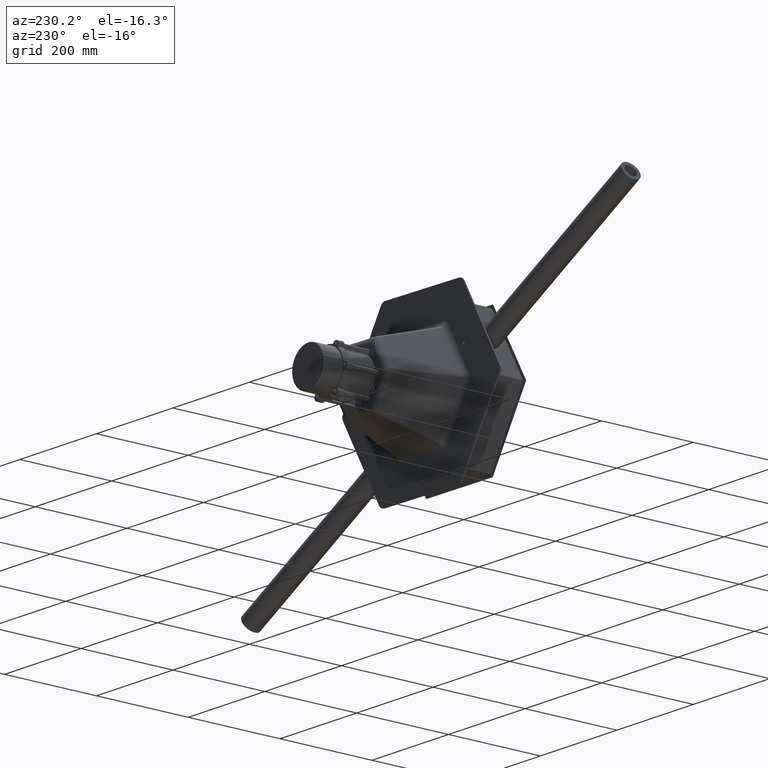
[diagram: clean part render]
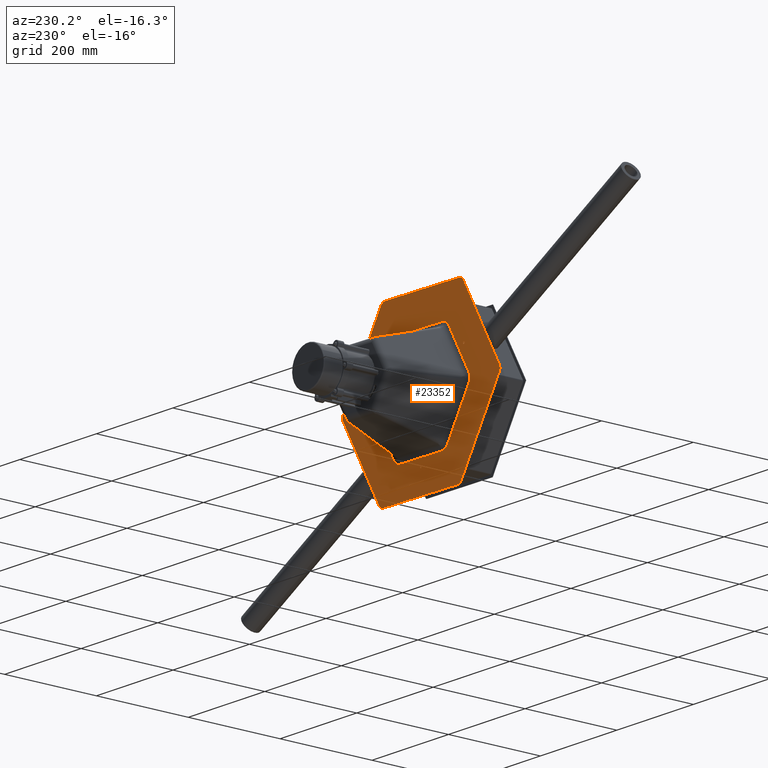
[diagram: same view with one face highlighted and labeled with its STEP entity id]
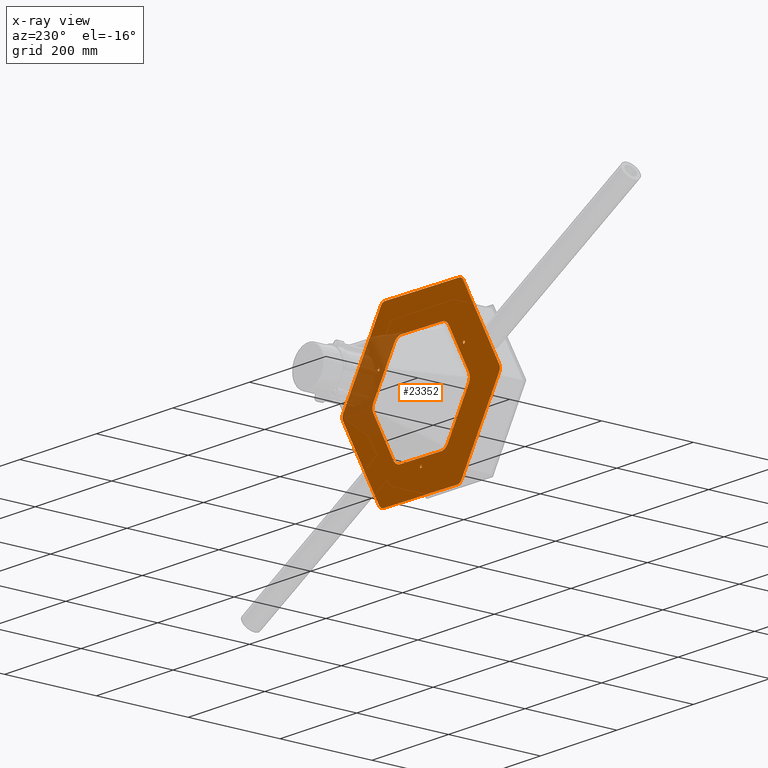
[diagram: x-ray of the same camera — body ghosted, the highlighted face saturated]
A machine part, auxiliary view. The second image highlights one B-rep face of the part: STEP entity #23352.
The next image is the same camera in x-ray: the body ghosted, the highlighted face saturated — about 18% of this face is hidden behind the body in this view.
In plain terms, the highlighted planar face has unit normal (-0, 1, -0).
Its self-contained STEP definition (entity closure, byte-faithful):
#237 = VERTEX_POINT ( 'NONE', #19984 ) ;
#259 = ORIENTED_EDGE ( 'NONE', *, *, #18455, .T. ) ;
#294 = CARTESIAN_POINT ( 'NONE',  ( -102.2335756172568040, -71.23590584283076055, 3.000000000000000000 ) ) ;
#449 = CARTESIAN_POINT ( 'NONE',  ( 63.69974159824984383, 111.8859771665176766, 3.000000000000000000 ) ) ;
#627 = VERTEX_POINT ( 'NONE', #6059 ) ;
#777 =( BOUNDED_CURVE ( )  B_SPLINE_CURVE ( 3, ( #13320, #21138, #10835, #28954 ),
 .UNSPECIFIED., .F., .F. ) 
 B_SPLINE_CURVE_WITH_KNOTS ( ( 4, 4 ),
 ( 5.781736827145350865, 6.283185307179586232 ),
 .UNSPECIFIED. ) 
 CURVE ( )  GEOMETRIC_REPRESENTATION_ITEM ( )  RATIONAL_B_SPLINE_CURVE ( ( 1.000000000000000000, 0.9791553251799449686, 0.9791553251799449686, 1.000000000000000000 ) ) 
 REPRESENTATION_ITEM ( '' )  );
#853 = LINE ( 'NONE', #21606, #8546 ) ;
#980 = ORIENTED_EDGE ( 'NONE', *, *, #12098, .T. ) ;
#995 = EDGE_CURVE ( 'NONE', #2532, #237, #9636, .T. ) ;
#998 = VERTEX_POINT ( 'NONE', #17153 ) ;
#1296 = FACE_BOUND ( 'NONE', #28038, .T. ) ;
#1442 = DIRECTION ( 'NONE',  ( 1.000000000000000000, 0.0000000000000000000, 0.0000000000000000000 ) ) ;
#1617 = CARTESIAN_POINT ( 'NONE',  ( -10.57531631285924156, 124.1548265256771657, 3.000000000000000000 ) ) ;
#1655 = PLANE ( 'NONE',  #32289 ) ;
#1810 = CARTESIAN_POINT ( 'NONE',  ( -131.0606159927932026, -0.9905632959438803731, 3.000000000000000000 ) ) ;
#1875 = CARTESIAN_POINT ( 'NONE',  ( 180.0000000000000568, -103.9230484541325978, 3.000000000000000000 ) ) ;
#1896 = VECTOR ( 'NONE', #4696, 1000.000000000000227 ) ;
#1960 = CARTESIAN_POINT ( 'NONE',  ( 61.19974159824982252, 111.8859771665176766, 3.000000000000000000 ) ) ;
#2061 = EDGE_CURVE ( 'NONE', #30990, #24450, #7543, .T. ) ;
#2078 = CARTESIAN_POINT ( 'NONE',  ( -105.4923940547534187, -69.35442614070200307, 2.999999999999999112 ) ) ;
#2101 = FACE_BOUND ( 'NONE', #17333, .T. ) ;
#2138 = CARTESIAN_POINT ( 'NONE',  ( -3.716348494597271124, -127.0074095792361959, 2.999999999999999112 ) ) ;
#2185 = CARTESIAN_POINT ( 'NONE',  ( -180.0000000000000284, -103.9230484541326831, 3.000000000000000000 ) ) ;
#2196 = CARTESIAN_POINT ( 'NONE',  ( 10.57531631285926110, 124.1548265256772083, 3.000000000000000000 ) ) ;
#2288 = CARTESIAN_POINT ( 'NONE',  ( -112.8088919301161042, -52.91892068284656858, 3.000000000000000000 ) ) ;
#2380 = ORIENTED_EDGE ( 'NONE', *, *, #2940, .T. ) ;
#2389 = VERTEX_POINT ( 'NONE', #294 ) ;
#2503 = CARTESIAN_POINT ( 'NONE',  ( 102.2335756172567187, 71.23590584283083160, 3.000000000000000000 ) ) ;
#2532 = VERTEX_POINT ( 'NONE', #29494 ) ;
#2597 = LINE ( 'NONE', #3224, #28545 ) ;
#2700 = DIRECTION ( 'NONE',  ( 0.0000000000000000000, 0.0000000000000000000, 1.000000000000000000 ) ) ;
#2880 = CARTESIAN_POINT ( 'NONE',  ( 108.1334689171748806, -66.72215699525541766, 2.999999999999999112 ) ) ;
#2883 = CARTESIAN_POINT ( 'NONE',  ( -10.57531631285924156, 124.1548265256771657, 3.000000000000000000 ) ) ;
#2940 = EDGE_CURVE ( 'NONE', #16932, #627, #10976, .T. ) ;
#2965 = VERTEX_POINT ( 'NONE', #5092 ) ;
#3002 = CARTESIAN_POINT ( 'NONE',  ( -128.5606159927932879, -0.9905632959438803731, 3.000000000000000000 ) ) ;
#3047 = DIRECTION ( 'NONE',  ( 1.000000000000000000, 0.0000000000000000000, 0.0000000000000000000 ) ) ;
#3224 = CARTESIAN_POINT ( 'NONE',  ( -9.330518732437003138, 124.8735107438205461, 3.000000000000000000 ) ) ;
#3232 = CARTESIAN_POINT ( 'NONE',  ( 112.8088919301160900, -54.35628911913327954, 3.000000000000000000 ) ) ;
#3284 = CARTESIAN_POINT ( 'NONE',  ( 10.57531631285921137, -124.1548265256771941, 3.000000000000000000 ) ) ;
#3389 = VERTEX_POINT ( 'NONE', #3284 ) ;
#3453 = VERTEX_POINT ( 'NONE', #24309 ) ;
#3769 = CARTESIAN_POINT ( 'NONE',  ( 10.57531631285926110, 124.1548265256772083, 3.000000000000000000 ) ) ;
#3842 = CIRCLE ( 'NONE', #17942, 2.500000000000015987 ) ;
#4224 = ORIENTED_EDGE ( 'NONE', *, *, #19201, .T. ) ;
#4489 = DIRECTION ( 'NONE',  ( 0.0000000000000000000, 1.000000000000000000, 0.0000000000000000000 ) ) ;
#4506 = DIRECTION ( 'NONE',  ( 0.0000000000000000000, 0.0000000000000000000, 1.000000000000000000 ) ) ;
#4571 = EDGE_CURVE ( 'NONE', #28421, #33275, #16714, .T. ) ;
#4687 = VERTEX_POINT ( 'NONE', #6708 ) ;
#4693 = CARTESIAN_POINT ( 'NONE',  ( -108.1334689171749091, -66.72215699525544608, 2.999999999999999112 ) ) ;
#4696 = DIRECTION ( 'NONE',  ( -0.8660254037844385966, 0.5000000000000000000, 0.0000000000000000000 ) ) ;
#4712 = ORIENTED_EDGE ( 'NONE', *, *, #26738, .T. ) ;
#4776 = VERTEX_POINT ( 'NONE', #7140 ) ;
#4860 = AXIS2_PLACEMENT_3D ( 'NONE', #32467, #16931, #1442 ) ;
#4976 = CARTESIAN_POINT ( 'NONE',  ( 112.8088919301159763, 56.68188008710421855, 2.999999999999999112 ) ) ;
#5013 = CARTESIAN_POINT ( 'NONE',  ( -103.4783731976790477, -70.51722162468739441, 3.000000000000000000 ) ) ;
#5092 = CARTESIAN_POINT ( 'NONE',  ( 174.0000000000000568, -107.3871500692703336, 3.000000000000000000 ) ) ;
#5334 = DIRECTION ( 'NONE',  ( 0.0000000000000000000, 0.0000000000000000000, 1.000000000000000000 ) ) ;
#5401 =( BOUNDED_CURVE ( )  B_SPLINE_CURVE ( 3, ( #1617, #17118, #22337, #6862 ),
 .UNSPECIFIED., .F., .F. ) 
 B_SPLINE_CURVE_WITH_KNOTS ( ( 4, 4 ),
 ( 5.781736827145351754, 6.283185307179586232 ),
 .UNSPECIFIED. ) 
 CURVE ( )  GEOMETRIC_REPRESENTATION_ITEM ( )  RATIONAL_B_SPLINE_CURVE ( ( 1.000000000000000000, 0.9791553251799449686, 0.9791553251799449686, 1.000000000000000000 ) ) 
 REPRESENTATION_ITEM ( '' )  );
#5422 = ORIENTED_EDGE ( 'NONE', *, *, #24678, .F. ) ;
#5490 = CARTESIAN_POINT ( 'NONE',  ( 109.9916431644734871, -63.50370478961816900, 2.999999999999997335 ) ) ;
#5569 = CARTESIAN_POINT ( 'NONE',  ( -1.821459649775647449E-14, -193.9896904477142812, 3.000000000000000000 ) ) ;
#5620 = DIRECTION ( 'NONE',  ( 1.000000000000000000, 0.0000000000000000000, 0.0000000000000000000 ) ) ;
#5632 = CARTESIAN_POINT ( 'NONE',  ( 1.040834085586084257E-14, 207.8460969082652809, 3.000000000000000000 ) ) ;
#5665 = ORIENTED_EDGE ( 'NONE', *, *, #24811, .T. ) ;
#5676 = LINE ( 'NONE', #22357, #18605 ) ;
#5888 = CARTESIAN_POINT ( 'NONE',  ( -109.9916431644735866, 63.50370478961811216, 2.999999999999998224 ) ) ;
#6059 = CARTESIAN_POINT ( 'NONE',  ( 112.8088919301159905, 52.91892068284668227, 3.000000000000000000 ) ) ;
#6113 = DIRECTION ( 'NONE',  ( 0.8660254037844388186, -0.4999999999999996669, 0.0000000000000000000 ) ) ;
#6293 = ORIENTED_EDGE ( 'NONE', *, *, #12760, .F. ) ;
#6523 = CIRCLE ( 'NONE', #24479, 2.499999999999932943 ) ;
#6654 = CARTESIAN_POINT ( 'NONE',  ( -6.000000000000008882, 204.3819952931275168, 3.000000000000000000 ) ) ;
#6708 = CARTESIAN_POINT ( 'NONE',  ( -180.0000000000000284, -96.99484522385709795, 3.000000000000000000 ) ) ;
#6736 = CARTESIAN_POINT ( 'NONE',  ( 66.19974159824985804, 111.8859771665176766, 3.000000000000000000 ) ) ;
#6862 = CARTESIAN_POINT ( 'NONE',  ( 2.385150481294069307E-14, 127.0074095792361675, 2.999999999999999112 ) ) ;
#6887 = VERTEX_POINT ( 'NONE', #15729 ) ;
#7025 = CARTESIAN_POINT ( 'NONE',  ( 9.330518732436996032, -124.8735107438205603, 3.000000000000000000 ) ) ;
#7140 = CARTESIAN_POINT ( 'NONE',  ( -10.57531631285926998, -124.1548265256772083, 3.000000000000000000 ) ) ;
#7298 = EDGE_CURVE ( 'NONE', #2965, #21301, #23447, .T. ) ;
#7346 = CARTESIAN_POINT ( 'NONE',  ( -1.865110631197190548E-14, -127.0074095792361959, 2.999999999999999112 ) ) ;
#7378 = CARTESIAN_POINT ( 'NONE',  ( 109.9916431644734871, -63.50370478961816900, 2.999999999999997335 ) ) ;
#7426 = CARTESIAN_POINT ( 'NONE',  ( 102.2335756172568324, -71.23590584283073213, 3.000000000000000000 ) ) ;
#7438 = ORIENTED_EDGE ( 'NONE', *, *, #9599, .T. ) ;
#7541 = ORIENTED_EDGE ( 'NONE', *, *, #30410, .T. ) ;
#7543 = CIRCLE ( 'NONE', #4860, 2.499999999999919176 ) ;
#7580 = VERTEX_POINT ( 'NONE', #22043 ) ;
#7968 = CARTESIAN_POINT ( 'NONE',  ( 105.4923940547533761, -69.35442614070198886, 2.999999999999999112 ) ) ;
#8080 = CIRCLE ( 'NONE', #28428, 2.500000000000015987 ) ;
#8157 = DIRECTION ( 'NONE',  ( 1.000000000000000000, 0.0000000000000000000, 0.0000000000000000000 ) ) ;
#8379 = CARTESIAN_POINT ( 'NONE',  ( -174.0000000000000853, 107.3871500692703194, 3.000000000000000000 ) ) ;
#8519 = ORIENTED_EDGE ( 'NONE', *, *, #12091, .T. ) ;
#8546 = VECTOR ( 'NONE', #6113, 1000.000000000000114 ) ;
#8710 = DIRECTION ( 'NONE',  ( 0.0000000000000000000, 0.0000000000000000000, 1.000000000000000000 ) ) ;
#8760 = VECTOR ( 'NONE', #20295, 1000.000000000000114 ) ;
#8810 = VECTOR ( 'NONE', #27600, 1000.000000000000000 ) ;
#8838 = CARTESIAN_POINT ( 'NONE',  ( 105.4923940547532908, 69.35442614070210254, 2.999999999999999112 ) ) ;
#8850 = CARTESIAN_POINT ( 'NONE',  ( 2.385150481294069307E-14, 127.0074095792361675, 2.999999999999999112 ) ) ;
#8883 = VERTEX_POINT ( 'NONE', #25751 ) ;
#9268 = CIRCLE ( 'NONE', #24276, 12.00000000000001066 ) ;
#9366 = CARTESIAN_POINT ( 'NONE',  ( -126.0606159927933589, -0.9905632959438801510, 3.000000000000000000 ) ) ;
#9451 = DIRECTION ( 'NONE',  ( 0.0000000000000000000, 0.0000000000000000000, 1.000000000000000000 ) ) ;
#9454 = CARTESIAN_POINT ( 'NONE',  ( -112.8088919301161468, 54.35628911913325112, 3.000000000000000000 ) ) ;
#9477 = CARTESIAN_POINT ( 'NONE',  ( 64.49258023428306785, -110.8974878807649702, 3.000000000000000000 ) ) ;
#9583 = CARTESIAN_POINT ( 'NONE',  ( 3.716348494597223606, -127.0074095792361959, 2.999999999999999556 ) ) ;
#9599 = EDGE_CURVE ( 'NONE', #11940, #4687, #27754, .T. ) ;
#9636 = LINE ( 'NONE', #9454, #8810 ) ;
#9865 = CARTESIAN_POINT ( 'NONE',  ( -109.9916431644735439, -63.50370478961814058, 2.999999999999999112 ) ) ;
#9921 = EDGE_CURVE ( 'NONE', #24450, #30990, #17175, .T. ) ;
#9992 = EDGE_CURVE ( 'NONE', #14315, #30175, #2597, .T. ) ;
#10063 = DIRECTION ( 'NONE',  ( 0.0000000000000000000, 0.0000000000000000000, 1.000000000000000000 ) ) ;
#10328 =( BOUNDED_CURVE ( )  B_SPLINE_CURVE ( 3, ( #26975, #8838, #11460, #29588 ),
 .UNSPECIFIED., .F., .F. ) 
 B_SPLINE_CURVE_WITH_KNOTS ( ( 4, 4 ),
 ( 5.781736827145355306, 6.283185307179586232 ),
 .UNSPECIFIED. ) 
 CURVE ( )  GEOMETRIC_REPRESENTATION_ITEM ( )  RATIONAL_B_SPLINE_CURVE ( ( 1.000000000000000000, 0.9791553251799453017, 0.9791553251799453017, 1.000000000000000000 ) ) 
 REPRESENTATION_ITEM ( '' )  );
#10472 = ORIENTED_EDGE ( 'NONE', *, *, #27643, .T. ) ;
#10664 = CARTESIAN_POINT ( 'NONE',  ( -174.0000000000000284, -107.3871500692704331, 3.000000000000000000 ) ) ;
#10726 = AXIS2_PLACEMENT_3D ( 'NONE', #3002, #21111, #5620 ) ;
#10835 = CARTESIAN_POINT ( 'NONE',  ( 111.8498174117721362, -60.28525258398089193, 2.999999999999999112 ) ) ;
#10976 =( BOUNDED_CURVE ( )  B_SPLINE_CURVE ( 3, ( #17857, #33383, #4976, #23070 ),
 .UNSPECIFIED., .F., .F. ) 
 B_SPLINE_CURVE_WITH_KNOTS ( ( 4, 4 ),
 ( 2.365532012695644245E-16, 0.5014484800342345894 ),
 .UNSPECIFIED. ) 
 CURVE ( )  GEOMETRIC_REPRESENTATION_ITEM ( )  RATIONAL_B_SPLINE_CURVE ( ( 1.000000000000000000, 0.9791553251799449686, 0.9791553251799449686, 1.000000000000000000 ) ) 
 REPRESENTATION_ITEM ( '' )  );
#11006 = VERTEX_POINT ( 'NONE', #13893 ) ;
#11021 = DIRECTION ( 'NONE',  ( 0.0000000000000000000, 0.0000000000000000000, 1.000000000000000000 ) ) ;
#11041 = DIRECTION ( 'NONE',  ( 9.472722593022467068E-16, -1.000000000000000000, 0.0000000000000000000 ) ) ;
#11081 = VECTOR ( 'NONE', #4489, 1000.000000000000000 ) ;
#11084 = CARTESIAN_POINT ( 'NONE',  ( -102.2335756172569035, 71.23590584283070370, 3.000000000000000000 ) ) ;
#11111 = LINE ( 'NONE', #7025, #31768 ) ;
#11175 = LINE ( 'NONE', #5632, #24949 ) ;
#11197 = ORIENTED_EDGE ( 'NONE', *, *, #13128, .T. ) ;
#11388 = DIRECTION ( 'NONE',  ( 0.0000000000000000000, -1.000000000000000000, 0.0000000000000000000 ) ) ;
#11460 = CARTESIAN_POINT ( 'NONE',  ( 108.1334689171747954, 66.72215699525553134, 2.999999999999999112 ) ) ;
#11687 = ORIENTED_EDGE ( 'NONE', *, *, #13977, .T. ) ;
#11729 = EDGE_LOOP ( 'NONE', ( #8519, #26803, #4712, #13545, #7438, #5665, #980, #13869, #20048, #12680, #30706, #11687 ) ) ;
#11794 =( BOUNDED_CURVE ( )  B_SPLINE_CURVE ( 3, ( #9865, #33207, #17780, #2288 ),
 .UNSPECIFIED., .F., .F. ) 
 B_SPLINE_CURVE_WITH_KNOTS ( ( 4, 4 ),
 ( 2.365532012695645231E-16, 0.5014484800342338122 ),
 .UNSPECIFIED. ) 
 CURVE ( )  GEOMETRIC_REPRESENTATION_ITEM ( )  RATIONAL_B_SPLINE_CURVE ( ( 1.000000000000000000, 0.9791553251799449686, 0.9791553251799449686, 1.000000000000000000 ) ) 
 REPRESENTATION_ITEM ( '' )  );
#11874 = CIRCLE ( 'NONE', #15456, 12.00000000000001066 ) ;
#11940 = VERTEX_POINT ( 'NONE', #28245 ) ;
#12069 = CARTESIAN_POINT ( 'NONE',  ( -102.2335756172569035, 71.23590584283070370, 3.000000000000000000 ) ) ;
#12091 = EDGE_CURVE ( 'NONE', #11006, #28421, #22558, .T. ) ;
#12098 = EDGE_CURVE ( 'NONE', #25660, #19557, #14845, .T. ) ;
#12108 = DIRECTION ( 'NONE',  ( 1.000000000000000000, 0.0000000000000000000, 0.0000000000000000000 ) ) ;
#12620 = ORIENTED_EDGE ( 'NONE', *, *, #28333, .T. ) ;
#12680 = ORIENTED_EDGE ( 'NONE', *, *, #7298, .T. ) ;
#12760 = EDGE_CURVE ( 'NONE', #32035, #29463, #3842, .T. ) ;
#12780 = ORIENTED_EDGE ( 'NONE', *, *, #20464, .F. ) ;
#13110 = CARTESIAN_POINT ( 'NONE',  ( 63.69974159824984383, 111.8859771665176766, 3.000000000000000000 ) ) ;
#13128 = EDGE_CURVE ( 'NONE', #3389, #21886, #13233, .T. ) ;
#13133 = EDGE_LOOP ( 'NONE', ( #32595, #30801 ) ) ;
#13233 =( BOUNDED_CURVE ( )  B_SPLINE_CURVE ( 3, ( #22496, #25106, #9583, #27706 ),
 .UNSPECIFIED., .F., .F. ) 
 B_SPLINE_CURVE_WITH_KNOTS ( ( 4, 4 ),
 ( 5.781736827145353530, 6.283185307179586232 ),
 .UNSPECIFIED. ) 
 CURVE ( )  GEOMETRIC_REPRESENTATION_ITEM ( )  RATIONAL_B_SPLINE_CURVE ( ( 1.000000000000000000, 0.9791553251799451907, 0.9791553251799451907, 1.000000000000000000 ) ) 
 REPRESENTATION_ITEM ( '' )  );
#13320 = CARTESIAN_POINT ( 'NONE',  ( 112.8088919301160900, -52.91892068284654016, 3.000000000000000000 ) ) ;
#13321 = VERTEX_POINT ( 'NONE', #2503 ) ;
#13368 = AXIS2_PLACEMENT_3D ( 'NONE', #16227, #8710, #26850 ) ;
#13545 = ORIENTED_EDGE ( 'NONE', *, *, #15257, .T. ) ;
#13620 = CARTESIAN_POINT ( 'NONE',  ( -109.9916431644735866, 63.50370478961811216, 2.999999999999998224 ) ) ;
#13869 = ORIENTED_EDGE ( 'NONE', *, *, #32532, .T. ) ;
#13893 = CARTESIAN_POINT ( 'NONE',  ( 174.0000000000000568, 107.3871500692703620, 3.000000000000000000 ) ) ;
#13977 = EDGE_CURVE ( 'NONE', #998, #11006, #11874, .T. ) ;
#14208 = ORIENTED_EDGE ( 'NONE', *, *, #14581, .T. ) ;
#14315 = VERTEX_POINT ( 'NONE', #12069 ) ;
#14421 = VERTEX_POINT ( 'NONE', #2196 ) ;
#14581 = EDGE_CURVE ( 'NONE', #14664, #15720, #32348, .T. ) ;
#14664 = VERTEX_POINT ( 'NONE', #7378 ) ;
#14845 = LINE ( 'NONE', #2185, #8760 ) ;
#14952 = EDGE_CURVE ( 'NONE', #14421, #13321, #853, .T. ) ;
#14955 = VERTEX_POINT ( 'NONE', #8379 ) ;
#15031 = CARTESIAN_POINT ( 'NONE',  ( 6.000000000000032863, 204.3819952931275168, 3.000000000000000000 ) ) ;
#15051 = FACE_BOUND ( 'NONE', #13133, .T. ) ;
#15140 = CARTESIAN_POINT ( 'NONE',  ( -10.57531631285926998, -124.1548265256772083, 3.000000000000000000 ) ) ;
#15257 = EDGE_CURVE ( 'NONE', #14955, #11940, #30015, .T. ) ;
#15408 = DIRECTION ( 'NONE',  ( -0.8660254037844387076, 0.4999999999999998335, 0.0000000000000000000 ) ) ;
#15456 = AXIS2_PLACEMENT_3D ( 'NONE', #18190, #2700, #20802 ) ;
#15475 = CARTESIAN_POINT ( 'NONE',  ( 109.9916431644734018, 63.50370478961828269, 2.999999999999999112 ) ) ;
#15715 = DIRECTION ( 'NONE',  ( 1.000000000000000000, 0.0000000000000000000, 0.0000000000000000000 ) ) ;
#15720 = VERTEX_POINT ( 'NONE', #7426 ) ;
#15729 = CARTESIAN_POINT ( 'NONE',  ( 61.99258023428314601, -110.8974878807649702, 3.000000000000000000 ) ) ;
#15961 = EDGE_CURVE ( 'NONE', #237, #20157, #29869, .T. ) ;
#16095 = CARTESIAN_POINT ( 'NONE',  ( -112.8088919301161468, 56.68188008710405512, 2.999999999999999112 ) ) ;
#16227 = CARTESIAN_POINT ( 'NONE',  ( 7.806255641895631925E-15, 193.9896904477142527, 3.000000000000000000 ) ) ;
#16347 = EDGE_CURVE ( 'NONE', #18682, #2532, #11794, .T. ) ;
#16616 = AXIS2_PLACEMENT_3D ( 'NONE', #5569, #23647, #8157 ) ;
#16714 = CIRCLE ( 'NONE', #13368, 12.00000000000000000 ) ;
#16851 = EDGE_CURVE ( 'NONE', #21886, #4776, #27366, .T. ) ;
#16931 = DIRECTION ( 'NONE',  ( 0.0000000000000000000, 0.0000000000000000000, 1.000000000000000000 ) ) ;
#16932 = VERTEX_POINT ( 'NONE', #15475 ) ;
#16945 = ORIENTED_EDGE ( 'NONE', *, *, #25107, .T. ) ;
#16948 = CIRCLE ( 'NONE', #16616, 12.00000000000000000 ) ;
#17006 = CARTESIAN_POINT ( 'NONE',  ( 112.8088919301160900, -52.91892068284654016, 3.000000000000000000 ) ) ;
#17118 = CARTESIAN_POINT ( 'NONE',  ( -7.316497875362673042, 126.0363062278059516, 2.999999999999999112 ) ) ;
#17153 = CARTESIAN_POINT ( 'NONE',  ( 180.0000000000000568, 96.99484522385711216, 3.000000000000000000 ) ) ;
#17175 = CIRCLE ( 'NONE', #10726, 2.499999999999919176 ) ;
#17333 = EDGE_LOOP ( 'NONE', ( #32255, #4224, #2380, #16945, #259, #14208, #12620, #11197, #20035, #26894, #31199, #20450, #26477, #19670, #32141, #29516, #10472, #7541 ) ) ;
#17567 = CARTESIAN_POINT ( 'NONE',  ( -102.2335756172568040, -71.23590584283076055, 3.000000000000000000 ) ) ;
#17673 = ORIENTED_EDGE ( 'NONE', *, *, #18140, .F. ) ;
#17780 = CARTESIAN_POINT ( 'NONE',  ( -112.8088919301161042, -56.68188008710410486, 2.999999999999999112 ) ) ;
#17857 = CARTESIAN_POINT ( 'NONE',  ( 109.9916431644734018, 63.50370478961828269, 2.999999999999999112 ) ) ;
#17942 = AXIS2_PLACEMENT_3D ( 'NONE', #449, #18534, #3047 ) ;
#18011 = LINE ( 'NONE', #5013, #24083 ) ;
#18140 = EDGE_CURVE ( 'NONE', #6887, #7580, #6523, .T. ) ;
#18190 = CARTESIAN_POINT ( 'NONE',  ( 168.0000000000000284, 96.99484522385711216, 3.000000000000000000 ) ) ;
#18455 = EDGE_CURVE ( 'NONE', #27639, #14664, #777, .T. ) ;
#18534 = DIRECTION ( 'NONE',  ( 0.0000000000000000000, 0.0000000000000000000, 1.000000000000000000 ) ) ;
#18605 = VECTOR ( 'NONE', #27484, 1000.000000000000000 ) ;
#18682 = VERTEX_POINT ( 'NONE', #24621 ) ;
#18727 = EDGE_CURVE ( 'NONE', #8883, #2965, #5676, .T. ) ;
#19201 = EDGE_CURVE ( 'NONE', #13321, #16932, #10328, .T. ) ;
#19257 = CARTESIAN_POINT ( 'NONE',  ( 7.316497875362693470, 126.0363062278059516, 2.999999999999999556 ) ) ;
#19557 = VERTEX_POINT ( 'NONE', #28547 ) ;
#19670 = ORIENTED_EDGE ( 'NONE', *, *, #15961, .T. ) ;
#19701 = EDGE_CURVE ( 'NONE', #20157, #14315, #31923, .T. ) ;
#19771 = CARTESIAN_POINT ( 'NONE',  ( 0.0000000000000000000, 0.0000000000000000000, 3.000000000000000000 ) ) ;
#19984 = CARTESIAN_POINT ( 'NONE',  ( -112.8088919301161468, 52.91892068284653305, 3.000000000000000000 ) ) ;
#19988 = CARTESIAN_POINT ( 'NONE',  ( -168.0000000000000000, -96.99484522385716900, 3.000000000000000000 ) ) ;
#20035 = ORIENTED_EDGE ( 'NONE', *, *, #16851, .T. ) ;
#20048 = ORIENTED_EDGE ( 'NONE', *, *, #18727, .T. ) ;
#20157 = VERTEX_POINT ( 'NONE', #22368 ) ;
#20295 = DIRECTION ( 'NONE',  ( 0.8660254037844385966, -0.4999999999999999445, 0.0000000000000000000 ) ) ;
#20450 = ORIENTED_EDGE ( 'NONE', *, *, #16347, .T. ) ;
#20464 = EDGE_CURVE ( 'NONE', #7580, #6887, #27496, .T. ) ;
#20802 = DIRECTION ( 'NONE',  ( 1.000000000000000000, 0.0000000000000000000, 0.0000000000000000000 ) ) ;
#20817 = CARTESIAN_POINT ( 'NONE',  ( 168.0000000000000284, -96.99484522385709795, 3.000000000000000000 ) ) ;
#20861 = VECTOR ( 'NONE', #11388, 1000.000000000000000 ) ;
#21111 = DIRECTION ( 'NONE',  ( 0.0000000000000000000, 0.0000000000000000000, 1.000000000000000000 ) ) ;
#21124 = DIRECTION ( 'NONE',  ( -0.8660254037844385966, -0.5000000000000002220, 0.0000000000000000000 ) ) ;
#21138 = CARTESIAN_POINT ( 'NONE',  ( 112.8088919301160615, -56.68188008710408354, 2.999999999999999112 ) ) ;
#21301 = VERTEX_POINT ( 'NONE', #21835 ) ;
#21338 = DIRECTION ( 'NONE',  ( 0.8660254037844388186, 0.4999999999999997224, -0.0000000000000000000 ) ) ;
#21606 = CARTESIAN_POINT ( 'NONE',  ( 103.4783731976789625, 70.51722162468746546, 3.000000000000000000 ) ) ;
#21814 = VECTOR ( 'NONE', #11041, 1000.000000000000000 ) ;
#21835 = CARTESIAN_POINT ( 'NONE',  ( 180.0000000000000568, -96.99484522385709795, 3.000000000000000000 ) ) ;
#21886 = VERTEX_POINT ( 'NONE', #26898 ) ;
#22013 = AXIS2_PLACEMENT_3D ( 'NONE', #25574, #10063, #28177 ) ;
#22043 = CARTESIAN_POINT ( 'NONE',  ( 66.99258023428301101, -110.8974878807649702, 3.000000000000000000 ) ) ;
#22337 = CARTESIAN_POINT ( 'NONE',  ( -3.716348494597231600, 127.0074095792361675, 2.999999999999999112 ) ) ;
#22357 = CARTESIAN_POINT ( 'NONE',  ( -3.642919299551294898E-14, -207.8460969082653094, 3.000000000000000000 ) ) ;
#22368 = CARTESIAN_POINT ( 'NONE',  ( -109.9916431644735866, 63.50370478961811216, 2.999999999999998224 ) ) ;
#22496 = CARTESIAN_POINT ( 'NONE',  ( 10.57531631285921137, -124.1548265256771941, 3.000000000000000000 ) ) ;
#22530 = DIRECTION ( 'NONE',  ( -0.8660254037844387076, -0.4999999999999998890, 0.0000000000000000000 ) ) ;
#22558 = LINE ( 'NONE', #22794, #1896 ) ;
#22610 = DIRECTION ( 'NONE',  ( 1.000000000000000000, 0.0000000000000000000, 0.0000000000000000000 ) ) ;
#22793 = CARTESIAN_POINT ( 'NONE',  ( -109.9916431644735439, -63.50370478961814058, 2.999999999999999112 ) ) ;
#22794 = CARTESIAN_POINT ( 'NONE',  ( 180.0000000000000568, 103.9230484541326121, 3.000000000000000000 ) ) ;
#23070 = CARTESIAN_POINT ( 'NONE',  ( 112.8088919301159905, 52.91892068284668227, 3.000000000000000000 ) ) ;
#23352 = ADVANCED_FACE ( 'NONE', ( #1296, #15051, #23548, #2101, #28037 ), #1655, .T. ) ;
#23417 = DIRECTION ( 'NONE',  ( 1.000000000000000000, 0.0000000000000000000, 0.0000000000000000000 ) ) ;
#23447 = CIRCLE ( 'NONE', #28226, 12.00000000000001066 ) ;
#23548 = FACE_BOUND ( 'NONE', #30450, .T. ) ;
#23563 = CARTESIAN_POINT ( 'NONE',  ( 102.2335756172568324, -71.23590584283073213, 3.000000000000000000 ) ) ;
#23647 = DIRECTION ( 'NONE',  ( 0.0000000000000000000, 0.0000000000000000000, 1.000000000000000000 ) ) ;
#23975 = CARTESIAN_POINT ( 'NONE',  ( -108.1334689171749801, 66.72215699525540344, 2.999999999999999556 ) ) ;
#24083 = VECTOR ( 'NONE', #15408, 1000.000000000000000 ) ;
#24276 = AXIS2_PLACEMENT_3D ( 'NONE', #19988, #4506, #22610 ) ;
#24309 = CARTESIAN_POINT ( 'NONE',  ( 2.385150481294069307E-14, 127.0074095792361675, 2.999999999999999112 ) ) ;
#24450 = VERTEX_POINT ( 'NONE', #1810 ) ;
#24479 = AXIS2_PLACEMENT_3D ( 'NONE', #9477, #27621, #12108 ) ;
#24621 = CARTESIAN_POINT ( 'NONE',  ( -109.9916431644735439, -63.50370478961814058, 2.999999999999999112 ) ) ;
#24678 = EDGE_CURVE ( 'NONE', #29463, #32035, #8080, .T. ) ;
#24811 = EDGE_CURVE ( 'NONE', #4687, #25660, #9268, .T. ) ;
#24846 = LINE ( 'NONE', #1875, #11081 ) ;
#24949 = VECTOR ( 'NONE', #21124, 999.9999999999998863 ) ;
#25106 = CARTESIAN_POINT ( 'NONE',  ( 7.316497875362649950, -126.0363062278059516, 2.999999999999999556 ) ) ;
#25107 = EDGE_CURVE ( 'NONE', #627, #27639, #28731, .T. ) ;
#25574 = CARTESIAN_POINT ( 'NONE',  ( -168.0000000000000000, 96.99484522385709795, 3.000000000000000000 ) ) ;
#25660 = VERTEX_POINT ( 'NONE', #10664 ) ;
#25751 = CARTESIAN_POINT ( 'NONE',  ( 5.999999999999984901, -204.3819952931275452, 3.000000000000000000 ) ) ;
#26158 = AXIS2_PLACEMENT_3D ( 'NONE', #26547, #11021, #29146 ) ;
#26214 =( BOUNDED_CURVE ( )  B_SPLINE_CURVE ( 3, ( #8850, #26980, #19257, #3769 ),
 .UNSPECIFIED., .F., .F. ) 
 B_SPLINE_CURVE_WITH_KNOTS ( ( 4, 4 ),
 ( 5.252536211965191278E-32, 0.5014484800342331461 ),
 .UNSPECIFIED. ) 
 CURVE ( )  GEOMETRIC_REPRESENTATION_ITEM ( )  RATIONAL_B_SPLINE_CURVE ( ( 1.000000000000000000, 0.9791553251799451907, 0.9791553251799451907, 1.000000000000000000 ) ) 
 REPRESENTATION_ITEM ( '' )  );
#26477 = ORIENTED_EDGE ( 'NONE', *, *, #995, .T. ) ;
#26547 = CARTESIAN_POINT ( 'NONE',  ( 64.49258023428306785, -110.8974878807649702, 3.000000000000000000 ) ) ;
#26615 = CARTESIAN_POINT ( 'NONE',  ( -105.4923940547534755, 69.35442614070194622, 2.999999999999999556 ) ) ;
#26738 = EDGE_CURVE ( 'NONE', #33275, #14955, #11175, .T. ) ;
#26803 = ORIENTED_EDGE ( 'NONE', *, *, #4571, .T. ) ;
#26850 = DIRECTION ( 'NONE',  ( 1.000000000000000000, 0.0000000000000000000, 0.0000000000000000000 ) ) ;
#26894 = ORIENTED_EDGE ( 'NONE', *, *, #27851, .T. ) ;
#26898 = CARTESIAN_POINT ( 'NONE',  ( -1.865110631197190548E-14, -127.0074095792361959, 2.999999999999999112 ) ) ;
#26975 = CARTESIAN_POINT ( 'NONE',  ( 102.2335756172567187, 71.23590584283083160, 3.000000000000000000 ) ) ;
#26980 = CARTESIAN_POINT ( 'NONE',  ( 3.716348494597269347, 127.0074095792361675, 2.999999999999999556 ) ) ;
#27072 = EDGE_CURVE ( 'NONE', #2389, #18682, #28870, .T. ) ;
#27366 =( BOUNDED_CURVE ( )  B_SPLINE_CURVE ( 3, ( #7346, #2138, #30670, #15140 ),
 .UNSPECIFIED., .F., .F. ) 
 B_SPLINE_CURVE_WITH_KNOTS ( ( 4, 4 ),
 ( 2.101014484786074759E-31, 0.5014484800342340343 ),
 .UNSPECIFIED. ) 
 CURVE ( )  GEOMETRIC_REPRESENTATION_ITEM ( )  RATIONAL_B_SPLINE_CURVE ( ( 1.000000000000000000, 0.9791553251799449686, 0.9791553251799449686, 1.000000000000000000 ) ) 
 REPRESENTATION_ITEM ( '' )  );
#27484 = DIRECTION ( 'NONE',  ( 0.8660254037844385966, 0.5000000000000001110, 0.0000000000000000000 ) ) ;
#27496 = CIRCLE ( 'NONE', #26158, 2.499999999999932943 ) ;
#27596 = DIRECTION ( 'NONE',  ( 1.000000000000000000, 0.0000000000000000000, -0.0000000000000000000 ) ) ;
#27600 = DIRECTION ( 'NONE',  ( -4.736361296511237478E-16, 1.000000000000000000, 0.0000000000000000000 ) ) ;
#27621 = DIRECTION ( 'NONE',  ( 0.0000000000000000000, 0.0000000000000000000, 1.000000000000000000 ) ) ;
#27639 = VERTEX_POINT ( 'NONE', #17006 ) ;
#27643 = EDGE_CURVE ( 'NONE', #30175, #3453, #5401, .T. ) ;
#27706 = CARTESIAN_POINT ( 'NONE',  ( -1.865110631197190548E-14, -127.0074095792361959, 2.999999999999999112 ) ) ;
#27754 = LINE ( 'NONE', #29524, #20861 ) ;
#27851 = EDGE_CURVE ( 'NONE', #4776, #2389, #18011, .T. ) ;
#28037 = FACE_OUTER_BOUND ( 'NONE', #11729, .T. ) ;
#28038 = EDGE_LOOP ( 'NONE', ( #17673, #12780 ) ) ;
#28177 = DIRECTION ( 'NONE',  ( 1.000000000000000000, 0.0000000000000000000, 0.0000000000000000000 ) ) ;
#28226 = AXIS2_PLACEMENT_3D ( 'NONE', #20817, #5334, #23417 ) ;
#28245 = CARTESIAN_POINT ( 'NONE',  ( -180.0000000000000284, 96.99484522385709795, 3.000000000000000000 ) ) ;
#28333 = EDGE_CURVE ( 'NONE', #15720, #3389, #11111, .T. ) ;
#28421 = VERTEX_POINT ( 'NONE', #15031 ) ;
#28428 = AXIS2_PLACEMENT_3D ( 'NONE', #13110, #31252, #15715 ) ;
#28545 = VECTOR ( 'NONE', #21338, 1000.000000000000000 ) ;
#28547 = CARTESIAN_POINT ( 'NONE',  ( -6.000000000000116351, -204.3819952931275168, 3.000000000000000000 ) ) ;
#28731 = LINE ( 'NONE', #3232, #21814 ) ;
#28870 =( BOUNDED_CURVE ( )  B_SPLINE_CURVE ( 3, ( #17567, #2078, #4693, #22793 ),
 .UNSPECIFIED., .F., .F. ) 
 B_SPLINE_CURVE_WITH_KNOTS ( ( 4, 4 ),
 ( 5.781736827145351754, 6.283185307179586232 ),
 .UNSPECIFIED. ) 
 CURVE ( )  GEOMETRIC_REPRESENTATION_ITEM ( )  RATIONAL_B_SPLINE_CURVE ( ( 1.000000000000000000, 0.9791553251799449686, 0.9791553251799449686, 1.000000000000000000 ) ) 
 REPRESENTATION_ITEM ( '' )  );
#28954 = CARTESIAN_POINT ( 'NONE',  ( 109.9916431644734871, -63.50370478961816900, 2.999999999999997335 ) ) ;
#29146 = DIRECTION ( 'NONE',  ( 1.000000000000000000, 0.0000000000000000000, 0.0000000000000000000 ) ) ;
#29154 = CARTESIAN_POINT ( 'NONE',  ( -111.8498174117722357, 60.28525258398084219, 2.999999999999999112 ) ) ;
#29463 = VERTEX_POINT ( 'NONE', #6736 ) ;
#29494 = CARTESIAN_POINT ( 'NONE',  ( -112.8088919301161042, -52.91892068284656858, 3.000000000000000000 ) ) ;
#29516 = ORIENTED_EDGE ( 'NONE', *, *, #9992, .T. ) ;
#29524 = CARTESIAN_POINT ( 'NONE',  ( -180.0000000000000284, 103.9230484541325836, 3.000000000000000000 ) ) ;
#29588 = CARTESIAN_POINT ( 'NONE',  ( 109.9916431644734018, 63.50370478961828269, 2.999999999999999112 ) ) ;
#29869 =( BOUNDED_CURVE ( )  B_SPLINE_CURVE ( 3, ( #31635, #16095, #29154, #13620 ),
 .UNSPECIFIED., .F., .F. ) 
 B_SPLINE_CURVE_WITH_KNOTS ( ( 4, 4 ),
 ( 5.781736827145352642, 6.283185307179586232 ),
 .UNSPECIFIED. ) 
 CURVE ( )  GEOMETRIC_REPRESENTATION_ITEM ( )  RATIONAL_B_SPLINE_CURVE ( ( 1.000000000000000000, 0.9791553251799449686, 0.9791553251799449686, 1.000000000000000000 ) ) 
 REPRESENTATION_ITEM ( '' )  );
#29948 = EDGE_CURVE ( 'NONE', #21301, #998, #24846, .T. ) ;
#30015 = CIRCLE ( 'NONE', #22013, 12.00000000000001066 ) ;
#30175 = VERTEX_POINT ( 'NONE', #2883 ) ;
#30410 = EDGE_CURVE ( 'NONE', #3453, #14421, #26214, .T. ) ;
#30450 = EDGE_LOOP ( 'NONE', ( #6293, #5422 ) ) ;
#30670 = CARTESIAN_POINT ( 'NONE',  ( -7.316497875362702352, -126.0363062278059516, 2.999999999999999112 ) ) ;
#30706 = ORIENTED_EDGE ( 'NONE', *, *, #29948, .T. ) ;
#30801 = ORIENTED_EDGE ( 'NONE', *, *, #2061, .F. ) ;
#30990 = VERTEX_POINT ( 'NONE', #9366 ) ;
#31199 = ORIENTED_EDGE ( 'NONE', *, *, #27072, .T. ) ;
#31252 = DIRECTION ( 'NONE',  ( 0.0000000000000000000, 0.0000000000000000000, 1.000000000000000000 ) ) ;
#31635 = CARTESIAN_POINT ( 'NONE',  ( -112.8088919301161468, 52.91892068284653305, 3.000000000000000000 ) ) ;
#31768 = VECTOR ( 'NONE', #22530, 1000.000000000000000 ) ;
#31923 =( BOUNDED_CURVE ( )  B_SPLINE_CURVE ( 3, ( #5888, #23975, #26615, #11084 ),
 .UNSPECIFIED., .F., .F. ) 
 B_SPLINE_CURVE_WITH_KNOTS ( ( 4, 4 ),
 ( 0.0000000000000000000, 0.5014484800342330351 ),
 .UNSPECIFIED. ) 
 CURVE ( )  GEOMETRIC_REPRESENTATION_ITEM ( )  RATIONAL_B_SPLINE_CURVE ( ( 1.000000000000000000, 0.9791553251799451907, 0.9791553251799451907, 1.000000000000000000 ) ) 
 REPRESENTATION_ITEM ( '' )  );
#32035 = VERTEX_POINT ( 'NONE', #1960 ) ;
#32141 = ORIENTED_EDGE ( 'NONE', *, *, #19701, .T. ) ;
#32255 = ORIENTED_EDGE ( 'NONE', *, *, #14952, .T. ) ;
#32289 = AXIS2_PLACEMENT_3D ( 'NONE', #19771, #9451, #27596 ) ;
#32348 =( BOUNDED_CURVE ( )  B_SPLINE_CURVE ( 3, ( #5490, #2880, #7968, #23563 ),
 .UNSPECIFIED., .F., .F. ) 
 B_SPLINE_CURVE_WITH_KNOTS ( ( 4, 4 ),
 ( 3.154042683594196107E-16, 0.5014484800342314808 ),
 .UNSPECIFIED. ) 
 CURVE ( )  GEOMETRIC_REPRESENTATION_ITEM ( )  RATIONAL_B_SPLINE_CURVE ( ( 1.000000000000000000, 0.9791553251799453017, 0.9791553251799453017, 1.000000000000000000 ) ) 
 REPRESENTATION_ITEM ( '' )  );
#32467 = CARTESIAN_POINT ( 'NONE',  ( -128.5606159927932879, -0.9905632959438803731, 3.000000000000000000 ) ) ;
#32532 = EDGE_CURVE ( 'NONE', #19557, #8883, #16948, .T. ) ;
#32595 = ORIENTED_EDGE ( 'NONE', *, *, #9921, .F. ) ;
#33207 = CARTESIAN_POINT ( 'NONE',  ( -111.8498174117722073, -60.28525258398088482, 2.999999999999999112 ) ) ;
#33275 = VERTEX_POINT ( 'NONE', #6654 ) ;
#33383 = CARTESIAN_POINT ( 'NONE',  ( 111.8498174117720509, 60.28525258398101272, 2.999999999999999112 ) ) ;